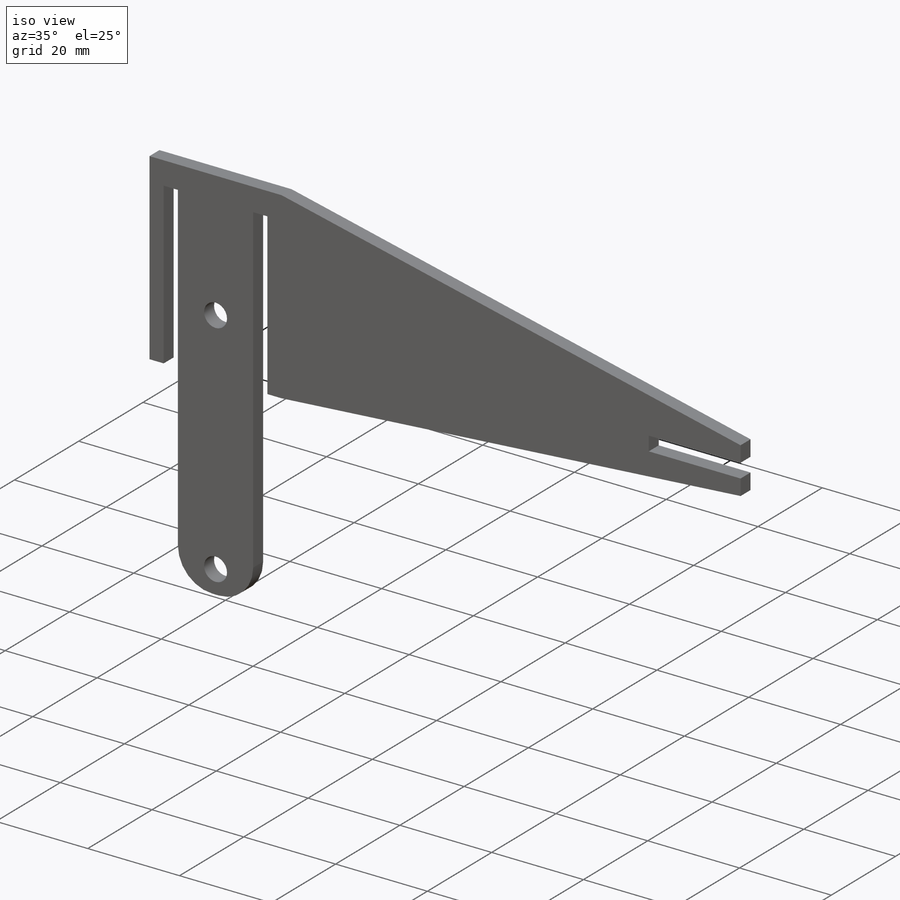
[diagram: iso view]
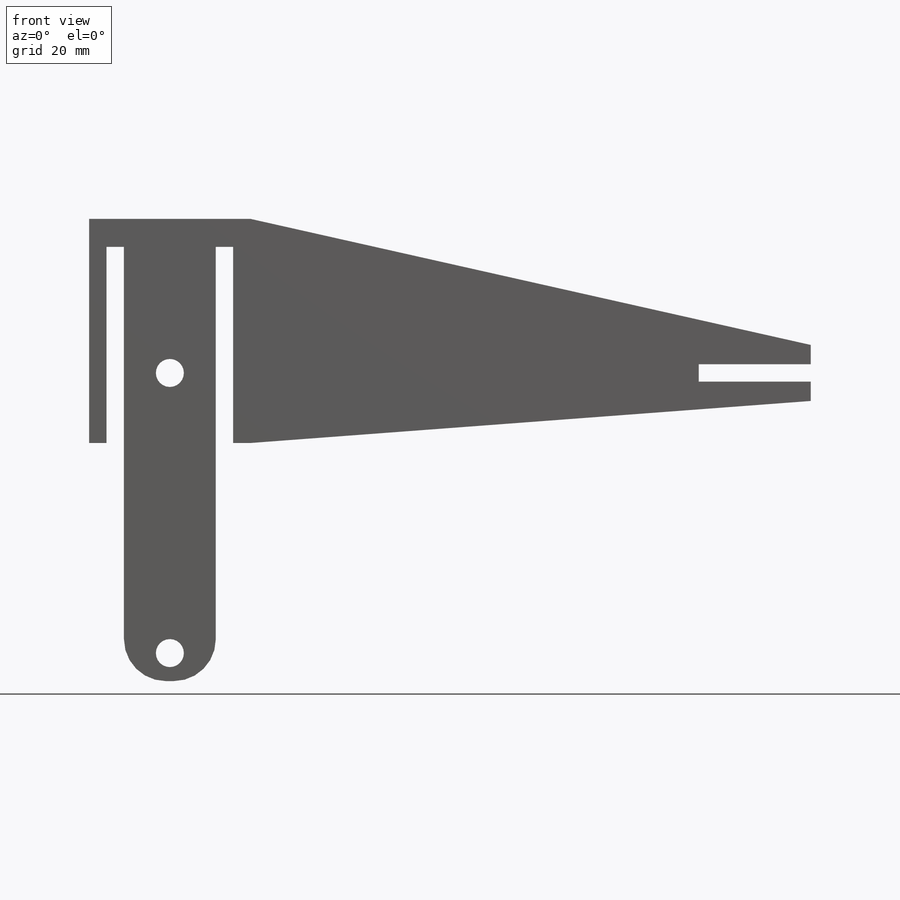
[diagram: front view]
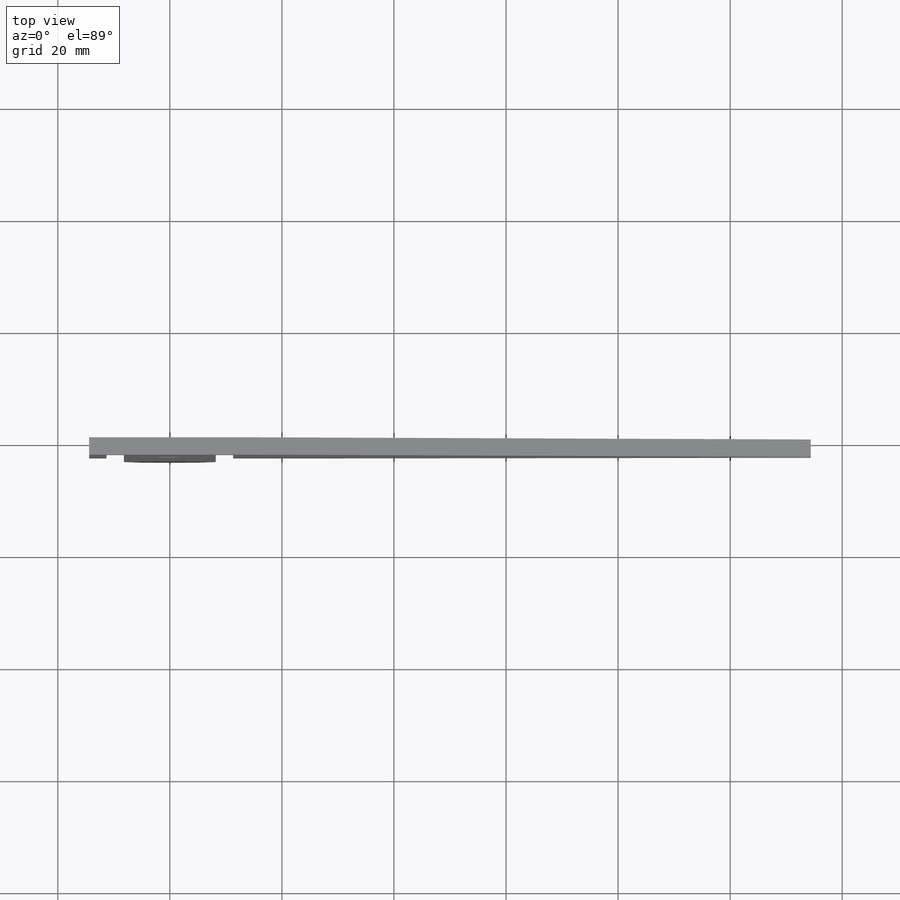
[diagram: top view]
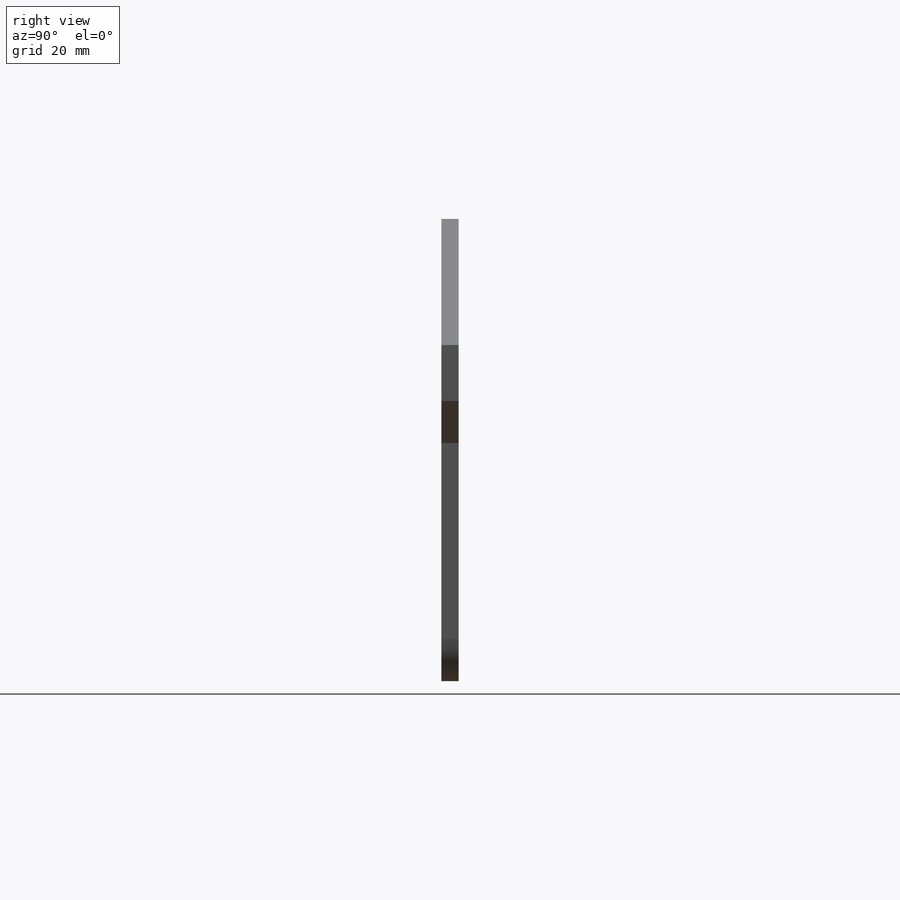
[diagram: right view]
SOLIDWORKS PART (.sldprt)
format: sldprt  version: not decoded by parser v0  size: 335,360 bytes
history: native  units: mm
features: sketch x4, extrude x3, material x1, cut_extrude x1, fillet x1 (+13 scaffold rows collapsed)
feature tree (23):
  scaffold x13  (default folders/planes/origin — collapsed)
  material  "Teak"
  sketch  "Sketch1"  dims[D1=20.0mm D2=40.0mm D3=28.8mm]
  extrude  "Boss-Extrude1"  Depth=3.1mm
  sketch  "Sketch2"  dims[c1.D4=5.0mm c1.D6=12.9mm c1.D1=10.5mm c1.D2=3.1mm c1.D3=5.0mm c1.D5=22.5mm c2.D6=6.4mm c2.D1=3.1mm]
  cut_extrude  "Cut-Extrude1"  [1 undecoded]
  sketch  "Sketch3"  dims[c1.D2=5.0mm c1.D1=50.0mm c1.D3=50.0mm c2.D1=5.0mm]
  extrude  "Boss-Extrude2"  [1 undecoded]
  fillet  "Fillet1"  Radius=7.5mm
  sketch  "Sketch4"  dims[c1.D3=5.0mm c1.D1=10.0mm c1.D2=150.0mm c1.D4=5.0mm c2.D1=0.0mm c2.D3=3.1mm c2.D4=3.45mm c2.D5=10.0mm c2.D6=20.0mm c3.D1=3.1mm c3.D2=0.0mm c3.D3=10.0mm c3.D5=100.0mm]
  extrude  "Boss-Extrude3"  [1 undecoded]
decode coverage: 6 of 9 modeling features carry decoded parameters
note: 3 parameter values undecoded
summary: no parameter record found for 3 features
note: suppression state not decoded; provenance and decode notes live in map.json
